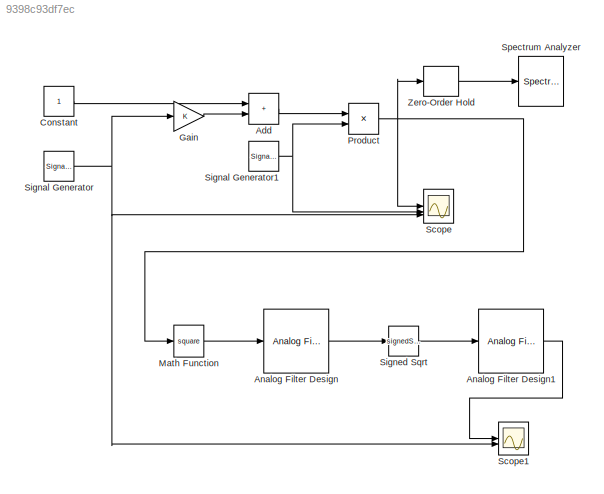
MODEL slx_9398c93df7ec
KIND model
CONFIG AbsTol = auto
CONFIG EnableMultiTasking = off
CONFIG FixedStep = auto
CONFIG MaxStep = auto
CONFIG MinStep = auto
CONFIG RelTol = 1e-3
CONFIG SampleTimeConstraint = Unconstrained
CONFIG SolverName = VariableStepAuto
CONFIG StartTime = 0.0
CONFIG StopTime = 10.0
BLOCK [Sum] Add
  IconShape = rectangular
BLOCK [Reference] Analog Filter Design  REF=dspfdesign/Analog
Filter Design
  SourceBlock = dspfdesign/Analog\nFilter Design
  SourceType = Analog Filter Design
BLOCK [Reference] Analog Filter Design1  REF=dspfdesign/Analog
Filter Design
  SourceBlock = dspfdesign/Analog\nFilter Design
  SourceType = Analog Filter Design
BLOCK [Constant] Constant
BLOCK [Gain] Gain
BLOCK [Math] Math Function
  Operator = square
BLOCK [Product] Product
BLOCK [Scope] Scope
  Floating = off
  NumInputPorts = 3
  ScopeSpecificationString = Simulink.scopes.TimeScopeBlockCfg('CurrentConfiguration', extmgr.ConfigurationSet(extmgr.Configuration('Core','General UI',true),extmgr.Configuration('Core','Source UI',true),extmgr.Configuration('Sources','WiredSimulink',true),extmgr.Configuration('Visuals','Time Domain',true,'SerializedDisplays',{struct('MinYLimReal','-4.31827','MaxYLimReal','4.31827','YLabelReal','','MinYLimMag','0.00000','MaxY...<+1788ch>
BLOCK [Scope] Scope1
  Floating = off
  NumInputPorts = 2
  ScopeSpecificationString = Simulink.scopes.TimeScopeBlockCfg('CurrentConfiguration', extmgr.ConfigurationSet(extmgr.Configuration('Core','General UI',true),extmgr.Configuration('Core','Source UI',true),extmgr.Configuration('Sources','WiredSimulink',true,'DataLoggingVariableName','ScopeData1'),extmgr.Configuration('Visuals','Time Domain',true,'SerializedDisplays',{struct('MinYLimReal','0.57245','MaxYLimReal','1.09673','YLabe...<+1534ch>
BLOCK [SignalGenerator] Signal Generator
  Frequency = 2000
BLOCK [SignalGenerator] Signal Generator1
  Amplitude = 2
  Frequency = 20000
BLOCK [Sqrt] Signed Sqrt
  Operator = signedSqrt
BLOCK [SpectrumAnalyzer] Spectrum Analyzer
  FrequencyScale = Log
  FrequencySpan = Start and stop frequencies
  GraphicalSettings = {"GraphicalSettings":{"Style":{"BackgroundColor":[0.12941176470588237,0.12941176470588237,0.12941176470588237],"AxesColor":[0.07058823529411765,0.07058823529411765,0.07058823529411765],"LabelsColor":[0.8509803921568627,0.8509803921568627,0.8509803921568627],"PreserveColors":false,"Visible":[true],"LineStyle":["-"],"LineWidth":[1.5],"BarWidth":[0.9],"LineColor":[[1,0.9098039215686274,0.392156862745...<+1009ch>
  PlotAsTwoSidedSpectrum = off
  SampleRate = 44.1e3
  ScopeFrameLocation = window
  StartFrequency = 20
  StopFrequency = 20e3
  WasSavedAsWebScope = on
  WindowInvariantSamplesPerUpdate = on
  WindowPosition = [1.000000,41.000000,1536.000000,800.000000,]
  YLimits = [-146.51259882,45.80725898]
BLOCK [ZeroOrderHold] Zero-Order Hold
  SampleTime = -1
LINE Add:1 -> Product:1
LINE Analog Filter Design1:1 -> Scope1:1
LINE Analog Filter Design:1 -> Signed Sqrt:1
LINE Constant:1 -> Add:1
LINE Gain:1 -> Add:2
LINE Math Function:1 -> Analog Filter Design:1
NET Product:1 -> Math Function:1, Scope:1, Zero-Order Hold:1
NET Signal Generator1:1 -> Product:2, Scope:2
NET Signal Generator:1 -> Gain:1, Scope1:2, Scope:3
LINE Signed Sqrt:1 -> Analog Filter Design1:1
LINE Zero-Order Hold:1 -> Spectrum Analyzer:1
note: NET lines group one-source signal fan-out (src -> all destinations, sorted); 1:1 wires keep LINE
